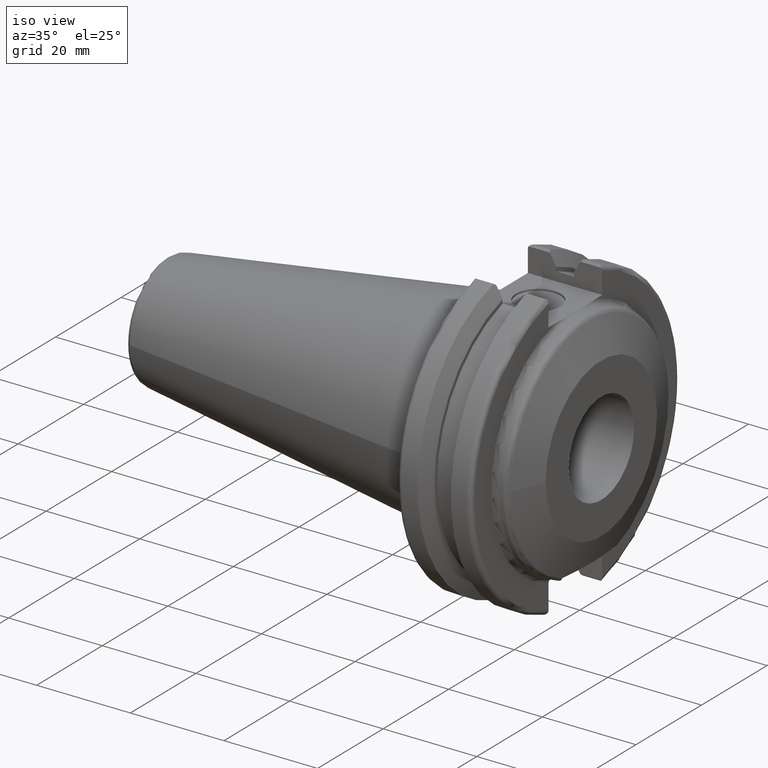
[diagram: clean part render]
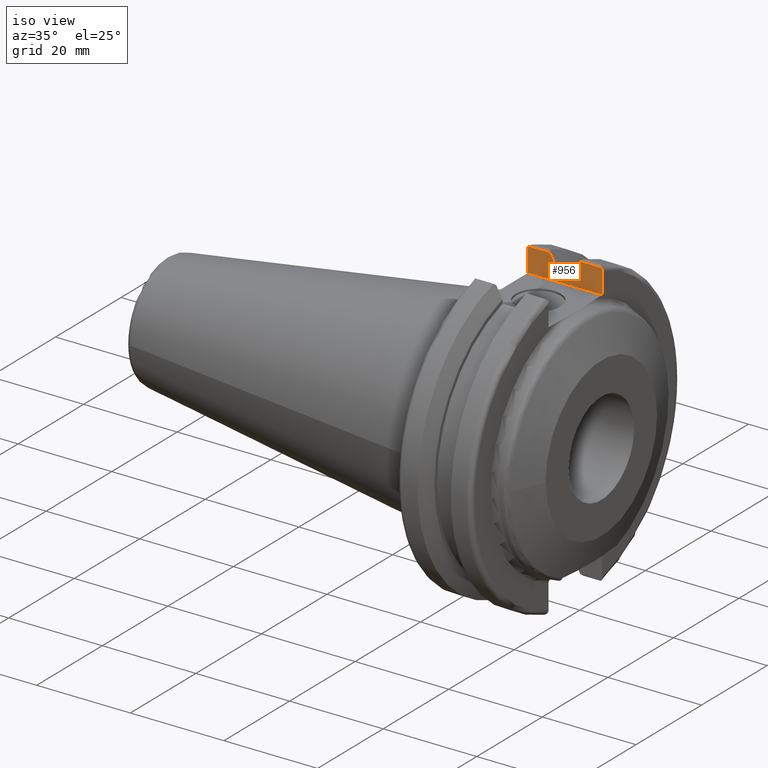
[diagram: same view with one face highlighted and labeled with its STEP entity id]
A machine part, iso view. The second image highlights one B-rep face of the part: STEP entity #956.
In plain terms, the highlighted planar face has unit normal (0, 1, 0).
Its self-contained STEP definition (entity closure, byte-faithful):
#61=LINE('',#1553,#117);
#77=LINE('',#1670,#133);
#86=LINE('',#1761,#142);
#87=LINE('',#1764,#143);
#90=LINE('',#1787,#146);
#91=LINE('',#1793,#147);
#92=LINE('',#1799,#148);
#93=LINE('',#1807,#149);
#117=VECTOR('',#1177,10.);
#133=VECTOR('',#1209,10.);
#142=VECTOR('',#1272,10.);
#143=VECTOR('',#1275,10.);
#146=VECTOR('',#1296,10.);
#147=VECTOR('',#1305,10.);
#148=VECTOR('',#1314,10.);
#149=VECTOR('',#1323,10.);
#169=(
BOUNDED_CURVE()
B_SPLINE_CURVE(2,(#1779,#1780,#1781),.UNSPECIFIED.,.F.,.F.)
B_SPLINE_CURVE_WITH_KNOTS((3,3),(0.0550586467393013,0.331607789535851),
 .UNSPECIFIED.)
CURVE()
GEOMETRIC_REPRESENTATION_ITEM()
RATIONAL_B_SPLINE_CURVE((1.00031614445078,1.00095203904113,1.))
REPRESENTATION_ITEM('')
);
#170=(
BOUNDED_CURVE()
B_SPLINE_CURVE(2,(#1803,#1804,#1805),.UNSPECIFIED.,.F.,.F.)
B_SPLINE_CURVE_WITH_KNOTS((3,3),(0.,0.276549142795341),.UNSPECIFIED.)
CURVE()
GEOMETRIC_REPRESENTATION_ITEM()
RATIONAL_B_SPLINE_CURVE((1.,1.00095203903681,1.00031614444935))
REPRESENTATION_ITEM('')
);
#194=PLANE('',#1076);
#245=FACE_OUTER_BOUND('',#302,.T.);
#302=EDGE_LOOP('',(#877,#878,#879,#880,#881,#882,#883,#884,#885,#886,#887,
#888));
#361=B_SPLINE_CURVE_WITH_KNOTS('',3,(#1519,#1520,#1521,#1522,#1523,#1524),
 .UNSPECIFIED.,.F.,.F.,(4,2,4),(0.0977210450333169,0.111963554372601,0.150804064902975),
 .UNSPECIFIED.);
#374=B_SPLINE_CURVE_WITH_KNOTS('',3,(#1699,#1700,#1701,#1702,#1703,#1704),
 .UNSPECIFIED.,.F.,.F.,(4,2,4),(0.452741154494498,0.491581665024872,0.505824174364157),
 .UNSPECIFIED.);
#414=VERTEX_POINT('',#1517);
#415=VERTEX_POINT('',#1518);
#419=VERTEX_POINT('',#1552);
#443=VERTEX_POINT('',#1667);
#444=VERTEX_POINT('',#1669);
#446=VERTEX_POINT('',#1679);
#459=VERTEX_POINT('',#1757);
#460=VERTEX_POINT('',#1763);
#464=VERTEX_POINT('',#1778);
#465=VERTEX_POINT('',#1786);
#466=VERTEX_POINT('',#1792);
#467=VERTEX_POINT('',#1798);
#521=EDGE_CURVE('',#414,#415,#361,.T.);
#528=EDGE_CURVE('',#415,#419,#61,.T.);
#559=EDGE_CURVE('',#443,#444,#77,.T.);
#566=EDGE_CURVE('',#444,#446,#374,.T.);
#589=EDGE_CURVE('',#459,#414,#86,.T.);
#590=EDGE_CURVE('',#446,#460,#87,.T.);
#596=EDGE_CURVE('',#460,#464,#169,.T.);
#599=EDGE_CURVE('',#464,#465,#90,.T.);
#602=EDGE_CURVE('',#465,#466,#91,.T.);
#605=EDGE_CURVE('',#466,#467,#92,.T.);
#607=EDGE_CURVE('',#467,#459,#170,.T.);
#608=EDGE_CURVE('',#419,#443,#93,.T.);
#877=ORIENTED_EDGE('',*,*,#521,.F.);
#878=ORIENTED_EDGE('',*,*,#589,.F.);
#879=ORIENTED_EDGE('',*,*,#607,.F.);
#880=ORIENTED_EDGE('',*,*,#605,.F.);
#881=ORIENTED_EDGE('',*,*,#602,.F.);
#882=ORIENTED_EDGE('',*,*,#599,.F.);
#883=ORIENTED_EDGE('',*,*,#596,.F.);
#884=ORIENTED_EDGE('',*,*,#590,.F.);
#885=ORIENTED_EDGE('',*,*,#566,.F.);
#886=ORIENTED_EDGE('',*,*,#559,.F.);
#887=ORIENTED_EDGE('',*,*,#608,.F.);
#888=ORIENTED_EDGE('',*,*,#528,.F.);
#956=ADVANCED_FACE('',(#245),#194,.F.);
#1076=AXIS2_PLACEMENT_3D('',#1808,#1324,#1325);
#1177=DIRECTION('',(0.,0.,-1.));
#1209=DIRECTION('',(0.,0.,1.));
#1272=DIRECTION('',(1.,0.,0.));
#1275=DIRECTION('',(1.,0.,0.));
#1296=DIRECTION('',(0.,0.,-1.));
#1305=DIRECTION('',(1.,0.,0.));
#1314=DIRECTION('',(0.,0.,1.));
#1323=DIRECTION('',(-1.,0.,0.));
#1324=DIRECTION('center_axis',(0.,1.,0.));
#1325=DIRECTION('ref_axis',(-1.,0.,0.));
#1517=CARTESIAN_POINT('',(18.9058722749097,8.19,30.1755016258903));
#1518=CARTESIAN_POINT('',(19.05,8.19,29.6392712461019));
#1519=CARTESIAN_POINT('Ctrl Pts',(18.9058722749097,8.19,30.1755016258903));
#1520=CARTESIAN_POINT('Ctrl Pts',(18.9318163728133,8.19,30.131014531546));
#1521=CARTESIAN_POINT('Ctrl Pts',(18.9539643471756,8.19,30.0852355256475));
#1522=CARTESIAN_POINT('Ctrl Pts',(19.020485567083,8.19,29.9212724384851));
#1523=CARTESIAN_POINT('Ctrl Pts',(19.05,8.19,29.7687396145364));
#1524=CARTESIAN_POINT('Ctrl Pts',(19.05,8.19,29.6392712461019));
#1552=CARTESIAN_POINT('',(19.05,8.19,25.));
#1553=CARTESIAN_POINT('',(19.05,8.19,12.5));
#1667=CARTESIAN_POINT('',(3.175,8.19,25.));
#1669=CARTESIAN_POINT('',(3.175,8.19,29.6392712461019));
#1670=CARTESIAN_POINT('',(3.175,8.19,12.5));
#1679=CARTESIAN_POINT('',(3.31912772509028,8.19,30.1755016258903));
#1699=CARTESIAN_POINT('Ctrl Pts',(3.175,8.19,29.6392712461018));
#1700=CARTESIAN_POINT('Ctrl Pts',(3.175,8.19,29.7687396145364));
#1701=CARTESIAN_POINT('Ctrl Pts',(3.20451443291695,8.19,29.9212724384851));
#1702=CARTESIAN_POINT('Ctrl Pts',(3.27103565282437,8.19,30.0852355256475));
#1703=CARTESIAN_POINT('Ctrl Pts',(3.29318362718666,8.19,30.131014531546));
#1704=CARTESIAN_POINT('Ctrl Pts',(3.31912772509028,8.19,30.1755016258903));
#1757=CARTESIAN_POINT('',(14.3815146964874,8.19,30.1755016258903));
#1761=CARTESIAN_POINT('',(16.8551333845378,8.19,30.1755016258903));
#1763=CARTESIAN_POINT('',(7.88668530351257,8.19,30.1755016258903));
#1764=CARTESIAN_POINT('',(5.39146661546217,8.19,30.1755016258903));
#1778=CARTESIAN_POINT('',(9.2191,8.19,27.7771386827498));
#1779=CARTESIAN_POINT('Ctrl Pts',(7.88668530351257,8.19,30.1755016258903));
#1780=CARTESIAN_POINT('Ctrl Pts',(8.58046356152372,8.19,28.9303689539709));
#1781=CARTESIAN_POINT('Ctrl Pts',(9.2191,8.19,27.7771386827498));
#1786=CARTESIAN_POINT('',(9.2191,8.19,26.932255754021));
#1787=CARTESIAN_POINT('',(9.2191,8.19,12.5));
#1792=CARTESIAN_POINT('',(13.0491,8.19,26.932255754021));
#1793=CARTESIAN_POINT('',(11.1341,8.19,26.932255754021));
#1798=CARTESIAN_POINT('',(13.0491,8.19,27.7771386827498));
#1799=CARTESIAN_POINT('',(13.0491,8.19,12.5));
#1803=CARTESIAN_POINT('Ctrl Pts',(13.0491,8.19,27.7771386827498));
#1804=CARTESIAN_POINT('Ctrl Pts',(13.6877364384888,8.19,28.9303689539933));
#1805=CARTESIAN_POINT('Ctrl Pts',(14.3815146964874,8.19,30.1755016258903));
#1807=CARTESIAN_POINT('',(20.05,8.19,25.));
#1808=CARTESIAN_POINT('Origin',(20.05,8.19,25.));